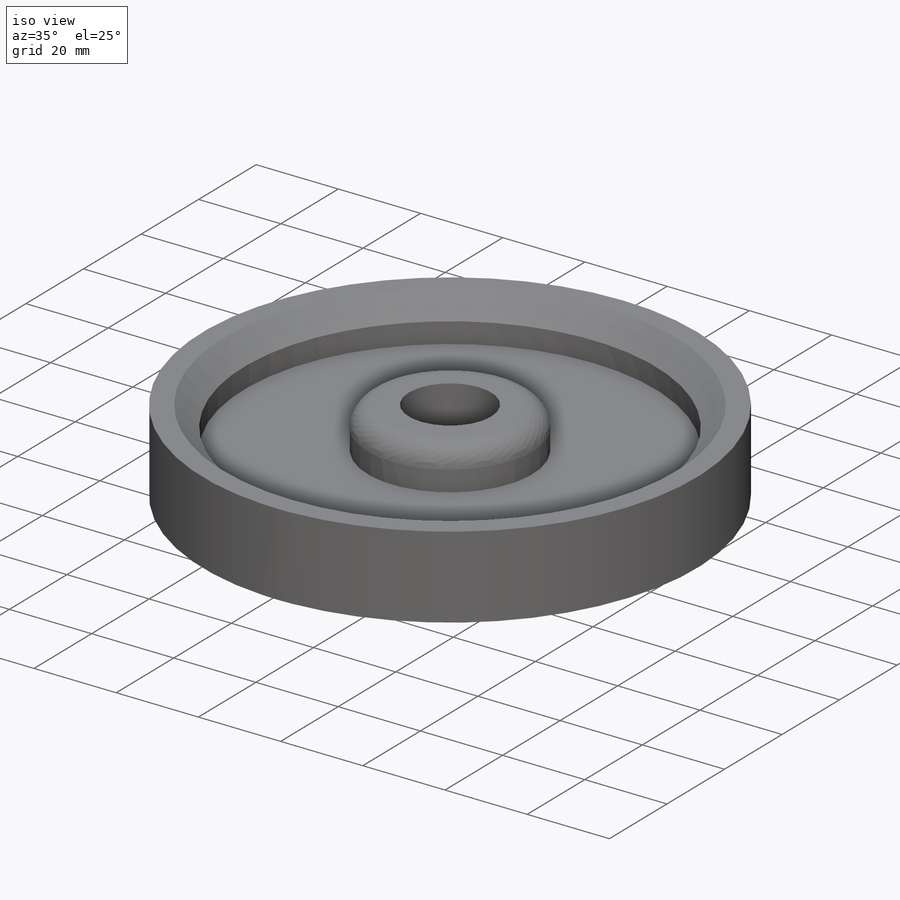
[diagram: iso view]
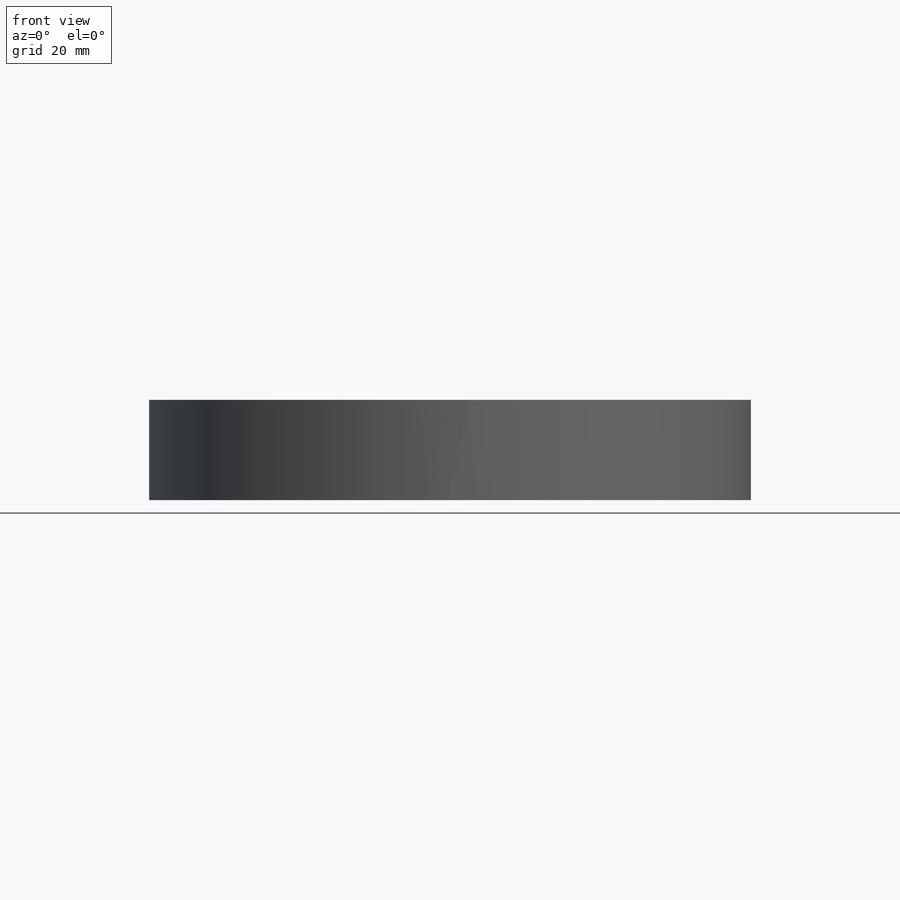
[diagram: front view]
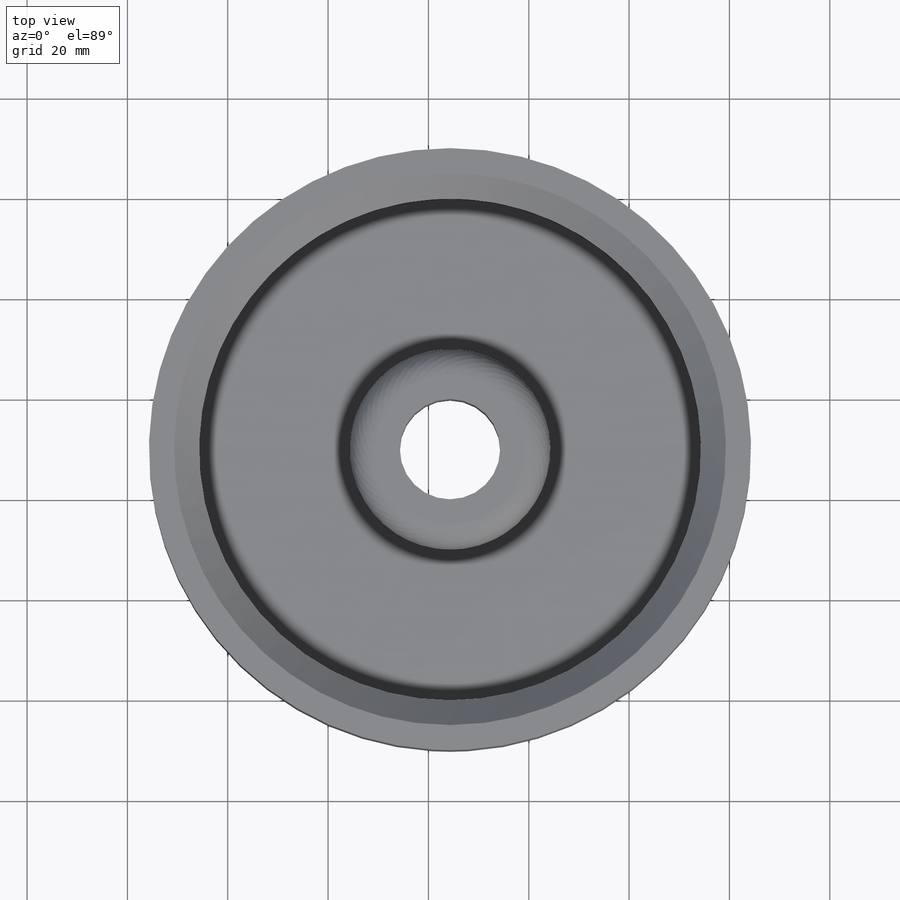
[diagram: top view]
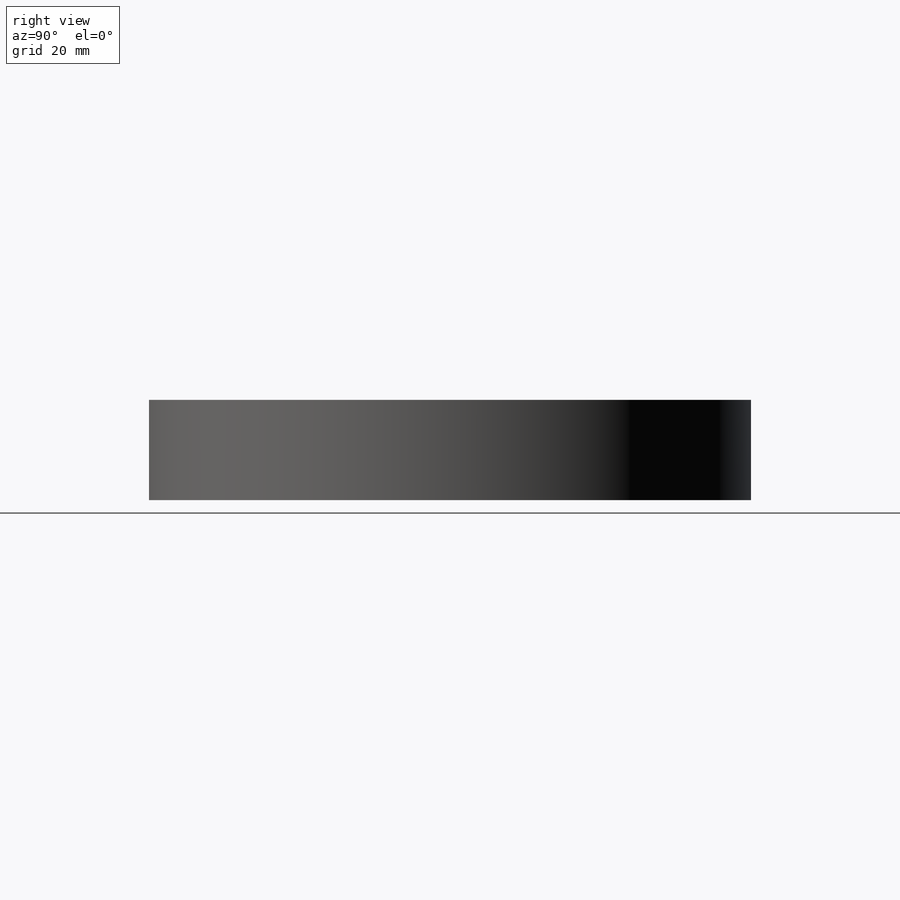
[diagram: right view]
SOLIDWORKS PART (.sldprt)
format: sldprt  version: not decoded by parser v0  size: 198,144 bytes
history: native  units: mm
features: plane x3, sketch x3, extrude x2, material x1, chamfer x1, fillet x1, cut_extrude x1 (+8 scaffold rows collapsed)
feature tree (20):
  scaffold x8  (default folders/planes/origin — collapsed)
  material  "Matériau <non spécifié>"
  plane  "Plan de face"
  plane  "Plan de dessus"
  plane  "Plan de droite"
  sketch  "Esquisse1"  dims[D1=~63.055363mm]
  extrude  "Boss.-Extru.1"  Depth=20mm
  sketch  "Esquisse2"
  extrude  "Boss.-Extru.2"  Depth=10mm
  chamfer  "Chanfrein1"  Distance=5mm Angle=45deg
  fillet  "Congé1"  Radius=5mm
  sketch  "Esquisse3"  dims[D1=~6.94441mm]
  cut_extrude  "Enlèv. mat.-Extru.1"  Depth=82mm
decode coverage: 7 of 8 modeling features carry decoded parameters
note: ~ marks probable driven/reference dimensions
note: suppression state not decoded; provenance and decode notes live in map.json
